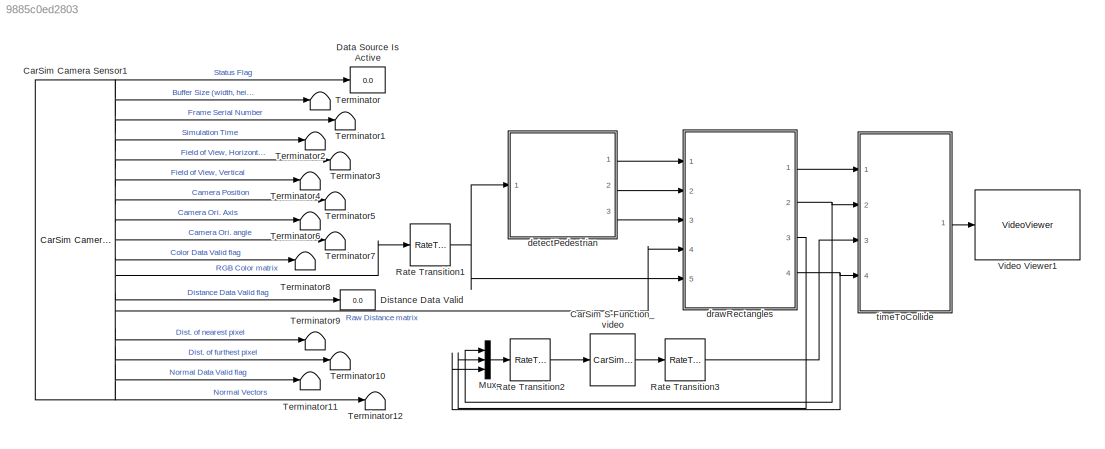
MODEL slx_9885c0ed2803
KIND model
CONFIG AbsTol = 1e-6
CONFIG EnableMultiTasking = off
CONFIG FixedStep = 0.001
CONFIG MaxStep = auto
CONFIG MinStep = auto
CONFIG RelTol = 1e-3
CONFIG SampleTimeConstraint = Unconstrained
CONFIG Solver = ode45
CONFIG SolverName = ode45
CONFIG StartTime = 0
CONFIG StopTime = 11
BLOCK [Reference] CarSim Camera Sensor1  REF=Solver_SF/CarSim Camera Sensor
  Ports = [0, 17]
  Priority = 1
  SourceBlock = Solver_SF/CarSim Camera Sensor
BLOCK [Reference] CarSim S-Function_video  REF=Solver_SF/CarSim S-Function_video
  Ports = [1, 1]
  Priority = 1
  SourceBlock = Solver_SF/CarSim S-Function_video
  SourceType = Vehicle math model library
BLOCK [Display] Data Source Is Active
  Decimation = 1
  Ports = [1]
BLOCK [Display] Distance Data Valid
  Decimation = 1
  Ports = [1]
BLOCK [Mux] Mux
  DisplayOption = bar
  Inputs = 3
  Ports = [3, 1]
BLOCK [RateTransition] Rate Transition1
  OutPortSampleTime = 0.05
BLOCK [RateTransition] Rate Transition2
  OutPortSampleTime = 0.05
BLOCK [RateTransition] Rate Transition3
  OutPortSampleTime = 0.05
BLOCK [Terminator] Terminator
BLOCK [Terminator] Terminator1
BLOCK [Terminator] Terminator10
BLOCK [Terminator] Terminator11
BLOCK [Terminator] Terminator12
BLOCK [Terminator] Terminator2
BLOCK [Terminator] Terminator3
BLOCK [Terminator] Terminator4
BLOCK [Terminator] Terminator5
BLOCK [Terminator] Terminator6
BLOCK [Terminator] Terminator7
BLOCK [Terminator] Terminator8
BLOCK [Terminator] Terminator9
BLOCK [VideoViewer] Video Viewer1 
  FigPos = [1370 494 578 341]
  Ports = [1]
  ScopeSpecificationString = vipscopes.VideoViewerScopeCfg('CurrentConfiguration', extmgr.ConfigurationSet(extmgr.Configuration('Core','General UI',true,'ShowMainToolbar',false,'ShowStatusbar',false),extmgr.Configuration('Core','Source UI',true),extmgr.Configuration('Sources','WiredSimulink',true),extmgr.Configuration('Visuals','Video',true,'AxesProperties',struct('Color',[1 1 1],'XColor',[0.15 0.15 0.15],'YColor',[0.15 0.15 ...<+697ch>
  colormapValue = gray(256)
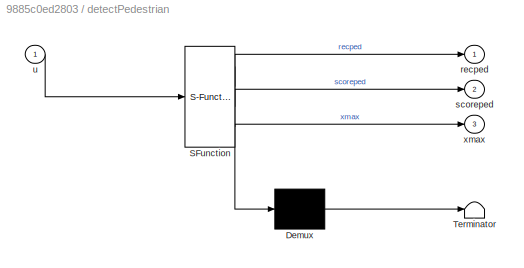
BLOCK [SubSystem] detectPedestrian
  ErrorFcn = Stateflow.Translate.translate
  PermitHierarchicalResolution = ExplicitOnly
  Ports = [1, 3]
  RequestExecContextInheritance = off
  SFBlockType = MATLAB Function
  TreatAsAtomicUnit = on
  Variant = off
BLOCK [Demux] detectPedestrian/ Demux 
  Outputs = 1
  Ports = [1, 1]
BLOCK [S-Function] detectPedestrian/ SFunction 
  EnableBusSupport = off
  FunctionName = sf_sfun
  PortCounts = [1 4]
  Ports = [1, 4]
  SFcnIsStateOwnerBlock = off
  SFunctionDeploymentMode = off
  Tag = Stateflow S-Function Pedestrian_Detection_CS2018 2
BLOCK [Terminator] detectPedestrian/ Terminator 
BLOCK [Outport] detectPedestrian/recped
  IconDisplay = Port number
BLOCK [Outport] detectPedestrian/scoreped
  IconDisplay = Port number
  Port = 2
BLOCK [Inport] detectPedestrian/u
  IconDisplay = Port number
BLOCK [Outport] detectPedestrian/xmax
  IconDisplay = Port number
  Port = 3
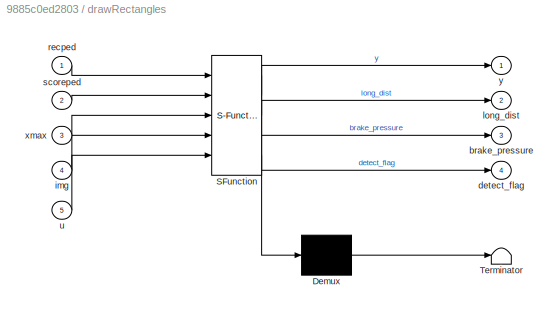
BLOCK [SubSystem] drawRectangles
  ErrorFcn = Stateflow.Translate.translate
  PermitHierarchicalResolution = ExplicitOnly
  Ports = [5, 4]
  RequestExecContextInheritance = off
  SFBlockType = MATLAB Function
  TreatAsAtomicUnit = on
  Variant = off
BLOCK [Demux] drawRectangles/ Demux 
  Outputs = 1
  Ports = [1, 1]
BLOCK [S-Function] drawRectangles/ SFunction 
  EnableBusSupport = off
  FunctionName = sf_sfun
  PortCounts = [5 5]
  Ports = [5, 5]
  SFcnIsStateOwnerBlock = off
  SFunctionDeploymentMode = off
  Tag = Stateflow S-Function Pedestrian_Detection_CS2018 1
BLOCK [Terminator] drawRectangles/ Terminator 
BLOCK [Outport] drawRectangles/brake_pressure
  IconDisplay = Port number
  Port = 3
BLOCK [Outport] drawRectangles/detect_flag
  IconDisplay = Port number
  Port = 4
BLOCK [Inport] drawRectangles/img
  IconDisplay = Port number
  Port = 4
BLOCK [Outport] drawRectangles/long_dist
  IconDisplay = Port number
  Port = 2
BLOCK [Inport] drawRectangles/recped
  IconDisplay = Port number
BLOCK [Inport] drawRectangles/scoreped
  IconDisplay = Port number
  Port = 2
BLOCK [Inport] drawRectangles/u
  IconDisplay = Port number
  Port = 5
BLOCK [Inport] drawRectangles/xmax
  IconDisplay = Port number
  Port = 3
BLOCK [Outport] drawRectangles/y
  IconDisplay = Port number
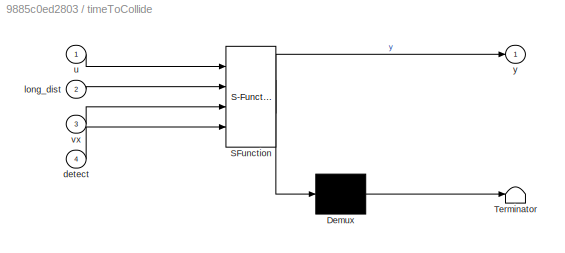
BLOCK [SubSystem] timeToCollide
  ErrorFcn = Stateflow.Translate.translate
  PermitHierarchicalResolution = ExplicitOnly
  Ports = [4, 1]
  RequestExecContextInheritance = off
  SFBlockType = MATLAB Function
  TreatAsAtomicUnit = on
  Variant = off
BLOCK [Demux] timeToCollide/ Demux 
  Outputs = 1
  Ports = [1, 1]
BLOCK [S-Function] timeToCollide/ SFunction 
  EnableBusSupport = off
  FunctionName = sf_sfun
  PortCounts = [4 2]
  Ports = [4, 2]
  SFcnIsStateOwnerBlock = off
  SFunctionDeploymentMode = off
  Tag = Stateflow S-Function Pedestrian_Detection_CS2018 3
BLOCK [Terminator] timeToCollide/ Terminator 
BLOCK [Inport] timeToCollide/detect
  IconDisplay = Port number
  Port = 4
BLOCK [Inport] timeToCollide/long_dist
  IconDisplay = Port number
  Port = 2
BLOCK [Inport] timeToCollide/u
  IconDisplay = Port number
BLOCK [Inport] timeToCollide/vx
  IconDisplay = Port number
  Port = 3
BLOCK [Outport] timeToCollide/y
  IconDisplay = Port number
LINE CarSim Camera Sensor1:1 -> Data Source Is Active:1
LINE CarSim Camera Sensor1:10 -> Terminator8:1
LINE CarSim Camera Sensor1:11 -> Rate Transition1:1
LINE CarSim Camera Sensor1:12 -> Distance Data Valid:1
LINE CarSim Camera Sensor1:13 -> drawRectangles:4
LINE CarSim Camera Sensor1:14 -> Terminator9:1
LINE CarSim Camera Sensor1:15 -> Terminator10:1
LINE CarSim Camera Sensor1:16 -> Terminator11:1
LINE CarSim Camera Sensor1:17 -> Terminator12:1
LINE CarSim Camera Sensor1:2 -> Terminator:1
LINE CarSim Camera Sensor1:3 -> Terminator1:1
LINE CarSim Camera Sensor1:4 -> Terminator2:1
LINE CarSim Camera Sensor1:5 -> Terminator3:1
LINE CarSim Camera Sensor1:6 -> Terminator4:1
LINE CarSim Camera Sensor1:7 -> Terminator5:1
LINE CarSim Camera Sensor1:8 -> Terminator6:1
LINE CarSim Camera Sensor1:9 -> Terminator7:1
LINE CarSim S-Function_video:1 -> Rate Transition3:1
LINE Mux:1 -> Rate Transition2:1
NET Rate Transition1:1 -> detectPedestrian:1, drawRectangles:5
LINE Rate Transition2:1 -> CarSim S-Function_video:1
LINE Rate Transition3:1 -> timeToCollide:3
LINE detectPedestrian:1 -> drawRectangles:1
LINE detectPedestrian:2 -> drawRectangles:2
LINE detectPedestrian:3 -> drawRectangles:3
LINE drawRectangles:1 -> timeToCollide:1
NET drawRectangles:2 -> Mux:1, timeToCollide:2
LINE drawRectangles:3 -> Mux:2
NET drawRectangles:4 -> Mux:3, timeToCollide:4
LINE timeToCollide:1 -> Video Viewer1 :1
note: NET lines group one-source signal fan-out (src -> all destinations, sorted); 1:1 wires keep LINE
CHART drawRectangles states=1 transitions=1
  STATE_LABEL 'eML_blk_kernel()'
  STATE_LABEL "SCRIPT:\nfunction [y, long_dist, brake_pressure, detect_flag] = drawRectangles(recped, scoreped, xmax, img, u)\n\n% img = distance matrix image\n% u = RGB matrix image\n\ncoder.extrinsic('sprintf')\ntmax = length(scoreped);\n\ny = u;\n\nlong_dist = 10000;\ndetect_flag = 0;\n\n% the following value need to be changed according to\n% the vehicle. This value is defined in CarSim. \naxle_track = 1.675;\n% randomly sel...<+1485ch>"
CHART detectPedestrian states=1 transitions=1
  STATE_LABEL 'eML_blk_kernel()'
  STATE_LABEL "SCRIPT:\nfunction [recped, scoreped, xmax] = detectPedestrian(u)\n\nrecped = zeros(10,4);\nscoreped = zeros(10,1);\n\ncoder.extrinsic('peopleDetectorACF');\ncoder.extrinsic('detect');\ndetector=peopleDetectorACF('caltech');\n\n\nroi = [1 1 300 180]; % use the whole screen for now.\n%roi = [1 120 300 370]\nresizeRatio = 1.5;\nframe = imresize(u, resizeRatio, 'Antialiasing', false);\n\n[bboxes, scores] = detect(det...<+414ch>"
CHART timeToCollide states=1 transitions=1
  STATE_LABEL 'eML_blk_kernel()'
  STATE_LABEL "SCRIPT:\nfunction y = Time_To_Collision(u, long_dist, vx, detect)\n\ncoder.extrinsic('sprintf')\ny = u;\n% convert km/h to m/s\nvel = vx*1000/3600;\ntime_to_collide = long_dist/vx;\n\n% may or may not need to put vel > 1.0 m/s. adjust this for your project.\nif (detect > 0) && (time_to_collide > 0) && (vel > 1)\n    text_pos2 = [10, 30];\n    time_text = sprintf('Time to Collision: %0.2f s' ,time_to_collide);...<+67ch>"
